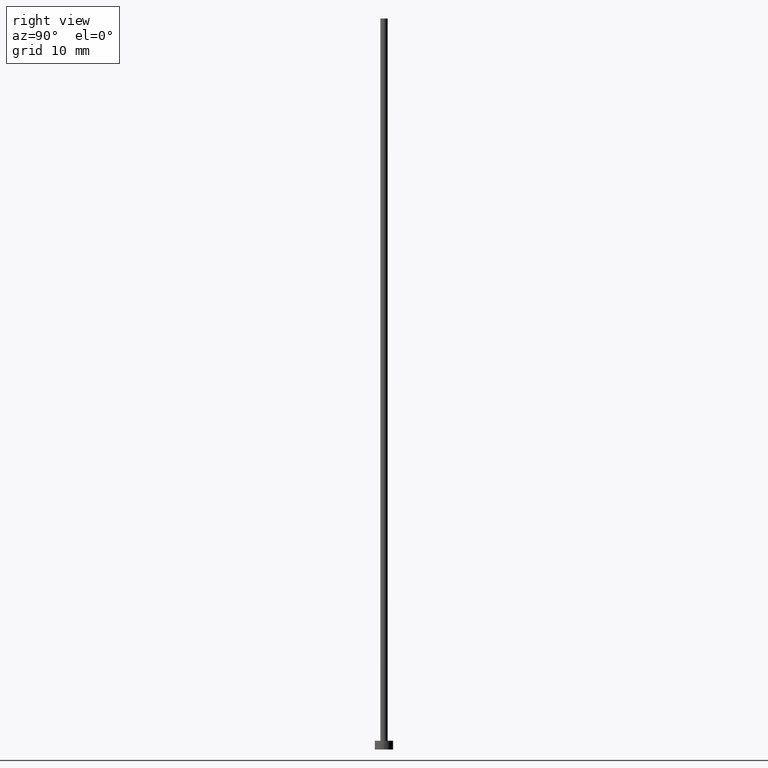
[diagram: clean part render]
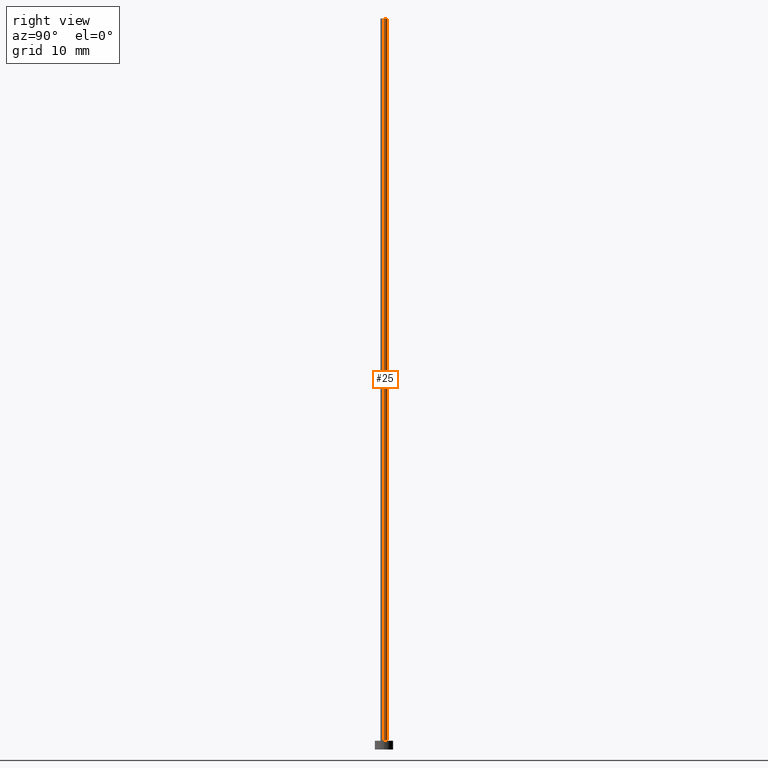
[diagram: same view with one face highlighted and labeled with its STEP entity id]
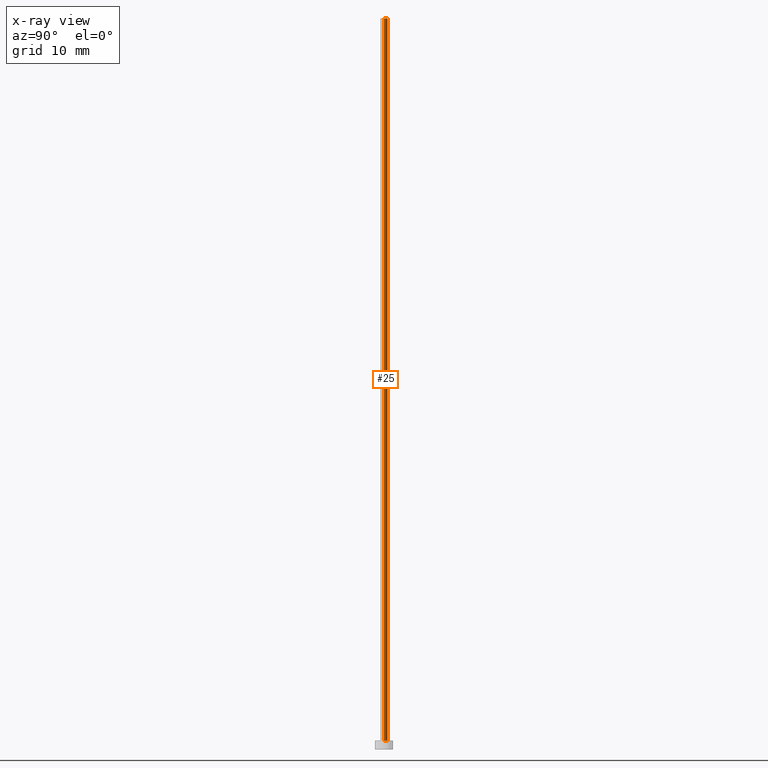
[diagram: x-ray of the same camera — body ghosted, the highlighted face saturated]
A machine part, right view. The second image highlights one B-rep face of the part: STEP entity #25.
The next image is the same camera in x-ray: the body ghosted, the highlighted face saturated — about 0% of this face is hidden behind the body in this view.
In plain terms, the highlighted cylindrical surface (edge-blend (fillet) strip) has radius 0.5 mm, axis along (-0, -0, -1).
Its self-contained STEP definition (entity closure, byte-faithful):
#18 = VECTOR ( 'NONE', #222, 1000.000000000000000 ) ;
#21 = EDGE_CURVE ( 'NONE', #252, #139, #142, .T. ) ;
#22 = CARTESIAN_POINT ( 'NONE',  ( 0.000000000000000000, 0.000000000000000000, 100.0000000000000000 ) ) ;
#25 = ADVANCED_FACE ( 'NONE', ( #146 ), #143, .T. ) ;
#26 = DIRECTION ( 'NONE',  ( -1.000000000000000000, 0.000000000000000000, 0.000000000000000000 ) ) ;
#28 = DIRECTION ( 'NONE',  ( -0.000000000000000000, -0.000000000000000000, -1.000000000000000000 ) ) ;
#68 = CARTESIAN_POINT ( 'NONE',  ( 0.5000000000000000000, 6.123233995736766036E-17, 100.0000000000000000 ) ) ;
#75 = ORIENTED_EDGE ( 'NONE', *, *, #21, .F. ) ;
#81 = VERTEX_POINT ( 'NONE', #121 ) ;
#82 = ORIENTED_EDGE ( 'NONE', *, *, #127, .F. ) ;
#91 = VERTEX_POINT ( 'NONE', #163 ) ;
#98 = ORIENTED_EDGE ( 'NONE', *, *, #249, .T. ) ;
#99 = AXIS2_PLACEMENT_3D ( 'NONE', #250, #245, #189 ) ;
#102 = AXIS2_PLACEMENT_3D ( 'NONE', #200, #28, #26 ) ;
#105 = CARTESIAN_POINT ( 'NONE',  ( -0.5000000000000000000, 0.000000000000000000, 100.0000000000000000 ) ) ;
#106 = CARTESIAN_POINT ( 'NONE',  ( 0.5000000000000000000, 6.123233995736766036E-17, 100.0000000000000000 ) ) ;
#107 = CIRCLE ( 'NONE', #99, 0.5000000000000000000 ) ;
#115 = LINE ( 'NONE', #68, #18 ) ;
#121 = CARTESIAN_POINT ( 'NONE',  ( -0.5000000000000000000, 0.000000000000000000, 1.199999999999999956 ) ) ;
#127 = EDGE_CURVE ( 'NONE', #139, #81, #205, .T. ) ;
#137 = DIRECTION ( 'NONE',  ( 1.000000000000000000, 0.000000000000000000, 0.000000000000000000 ) ) ;
#139 = VERTEX_POINT ( 'NONE', #105 ) ;
#142 = CIRCLE ( 'NONE', #183, 0.5000000000000000000 ) ;
#143 = CYLINDRICAL_SURFACE ( 'NONE', #102, 0.5000000000000000000 ) ;
#146 = FACE_OUTER_BOUND ( 'NONE', #231, .T. ) ;
#163 = CARTESIAN_POINT ( 'NONE',  ( 0.5000000000000000000, 6.123233995736766036E-17, 1.199999999999999956 ) ) ;
#180 = ORIENTED_EDGE ( 'NONE', *, *, #206, .T. ) ;
#181 = DIRECTION ( 'NONE',  ( -0.000000000000000000, -0.000000000000000000, -1.000000000000000000 ) ) ;
#183 = AXIS2_PLACEMENT_3D ( 'NONE', #22, #237, #137 ) ;
#189 = DIRECTION ( 'NONE',  ( 1.000000000000000000, 0.000000000000000000, 0.000000000000000000 ) ) ;
#200 = CARTESIAN_POINT ( 'NONE',  ( 0.000000000000000000, 0.000000000000000000, 100.0000000000000000 ) ) ;
#205 = LINE ( 'NONE', #240, #223 ) ;
#206 = EDGE_CURVE ( 'NONE', #252, #91, #115, .T. ) ;
#222 = DIRECTION ( 'NONE',  ( -0.000000000000000000, -0.000000000000000000, -1.000000000000000000 ) ) ;
#223 = VECTOR ( 'NONE', #181, 1000.000000000000000 ) ;
#231 = EDGE_LOOP ( 'NONE', ( #75, #180, #98, #82 ) ) ;
#237 = DIRECTION ( 'NONE',  ( 0.000000000000000000, 0.000000000000000000, 1.000000000000000000 ) ) ;
#240 = CARTESIAN_POINT ( 'NONE',  ( -0.5000000000000000000, 0.000000000000000000, 100.0000000000000000 ) ) ;
#245 = DIRECTION ( 'NONE',  ( 0.000000000000000000, 0.000000000000000000, 1.000000000000000000 ) ) ;
#249 = EDGE_CURVE ( 'NONE', #91, #81, #107, .T. ) ;
#250 = CARTESIAN_POINT ( 'NONE',  ( 0.000000000000000000, 0.000000000000000000, 1.199999999999999956 ) ) ;
#252 = VERTEX_POINT ( 'NONE', #106 ) ;